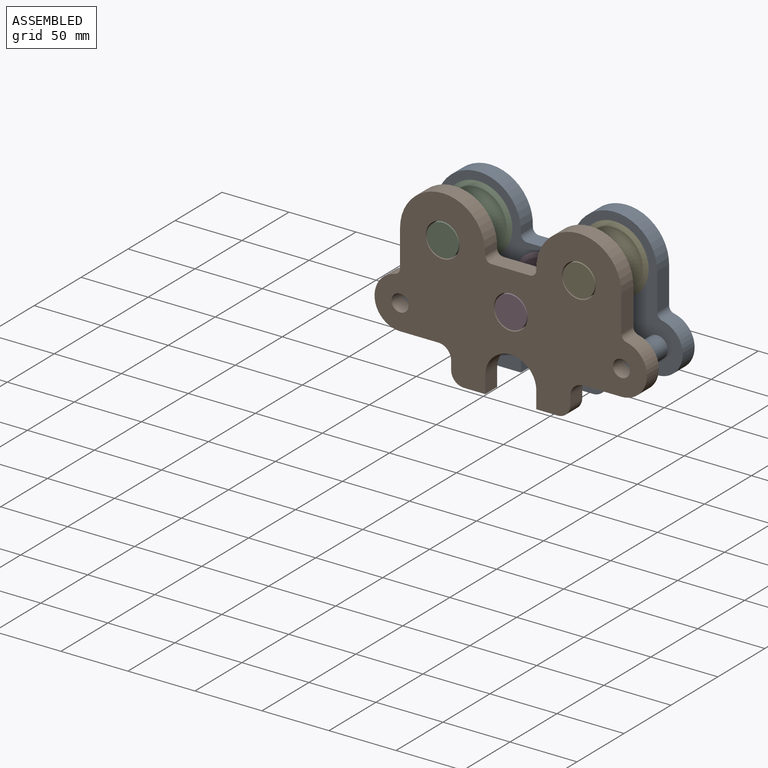
[diagram: assembled view]
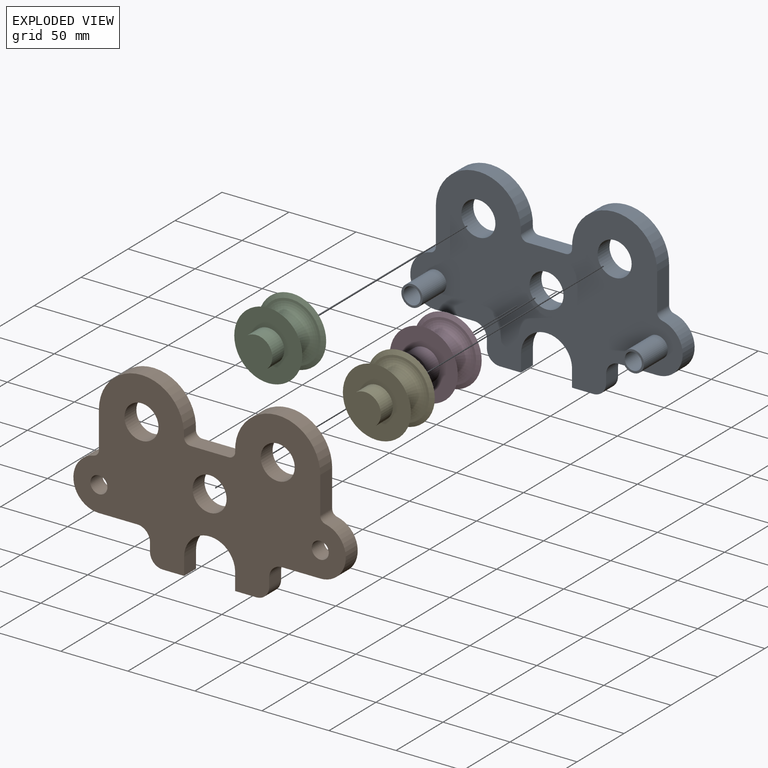
[diagram: exploded view]
GUIDED TOUR — MATED ASSEMBLY (Onshape document 58e2335e9acc530f8528affa, AutoMate assembly 58e2335e9acc530f8528affa_f4cbd53a4c2bf7e4a0e398c7_690183ee270c6294457ae0ae_default)

This assembly has 5 components, labeled P0..P4 below (a component is one placed occurrence of a part; the same part can appear more than once), held together by 4 mates. A mate is a constraint between two components; its type names the relative motion it leaves free:
  FASTENED — locks the two components together rigidly (no relative motion).
Axis/direction vectors are unit vectors and 'through' points are millimeter coordinates, both in the assembly's world frame.

MATES
  1. FASTENED "Fastened 2": P3 <-> P0, direction (0.000, 1.000, 0.000) through (-27.27, 97.55, 142.96) mm
  2. FASTENED "Fastened 1": P4 <-> P0, direction (0.000, 1.000, 0.000) through (23.53, 97.55, 177.89) mm
  3. FASTENED "Fastened 3": P2 <-> P0, direction (0.000, 1.000, 0.000) through (-78.07, 97.55, 177.89) mm
  4. FASTENED "Fastened 4": P1 <-> P4, direction (0.000, -1.000, 0.000) through (23.53, 46.75, 177.89) mm

ASSEMBLY ORDER
  1. P0 — the base component [order heuristic]
  2. P2 [order heuristic]
  3. P3 [order heuristic]
  4. P4 [order heuristic]
  5. P1 [order heuristic]
Order-tag legend:
  [order heuristic] — this assembly is geometrically interlocked (no collision-free removal order exists), so components are listed in mate-graph order; insertion feasibility is not verified.

Of the 5 components, 3 carry the full construction recipe — the FeatureScript program that regenerates the part's solid from scratch; the rest are supplied as boundary geometry only.
Each toured component is shown spotlighted twice — in the assembled view, then in the exploded view, where a leader line traces a displaced component back to its assembled socket (saturated green if recipe-attached, orange if geometry-only; every other component desaturated gray) — followed by its recipe or geometry summary and the mates that hold it.
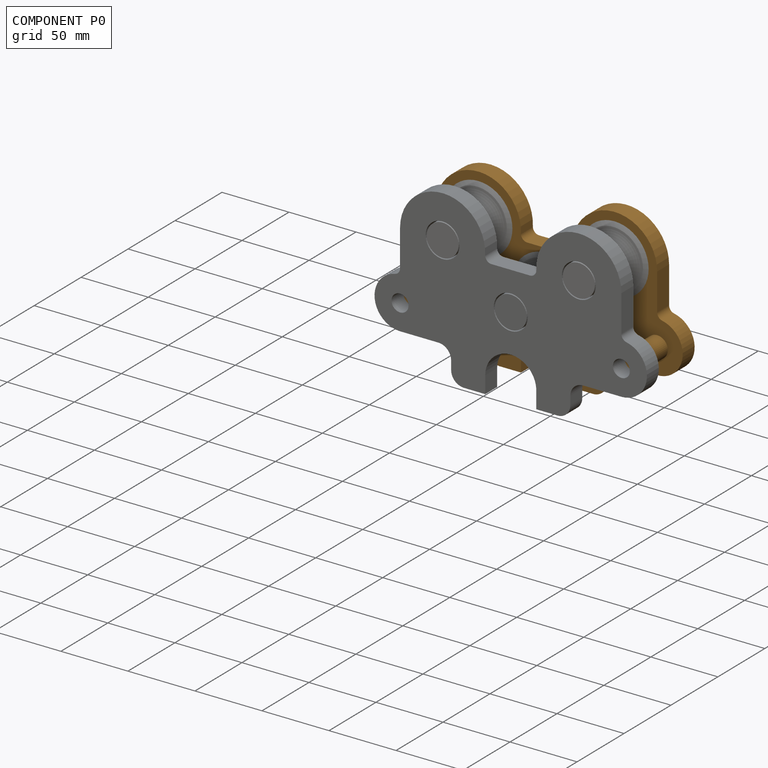
[diagram: component P0 — assembled]
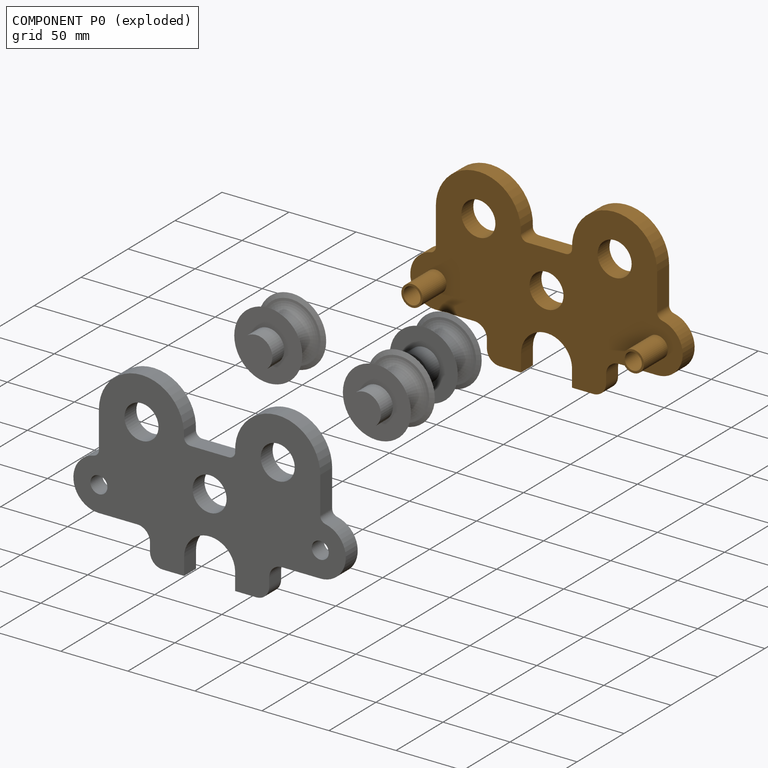
[diagram: component P0 — exploded]
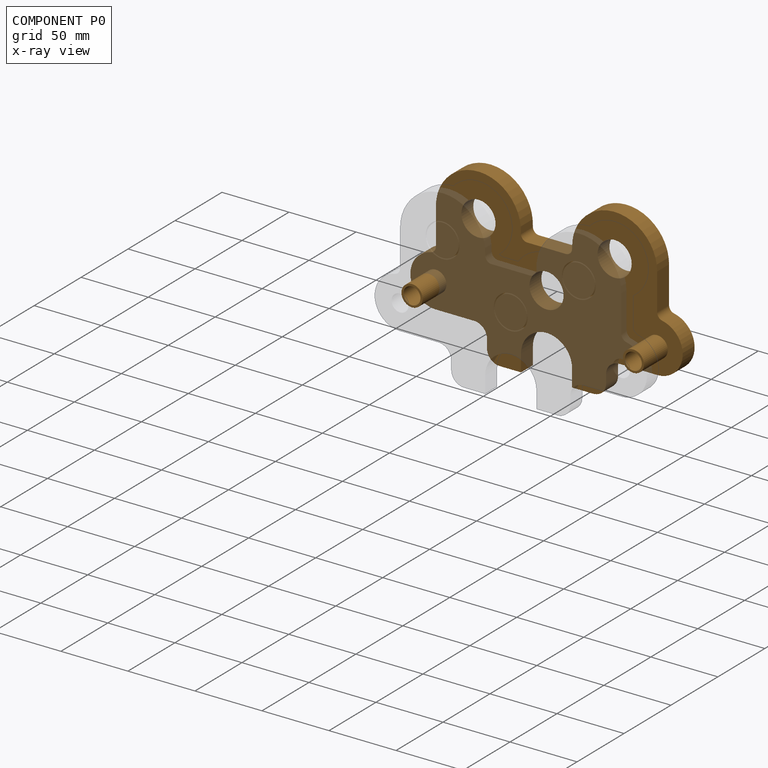
[diagram: component P0 — x-ray view]
COMPONENT P0 — geometry summary (no construction recipe available for this part):
  bounding box: 203.2 x 127.0 x 38.1 mm
  B-rep topology: 1 solid, 35 faces, 190 edges
  volume: 194689 mm^3 (20% of its bounding box)
  symmetry: mirror-symmetric across its x mid-plane
Held by: FASTENED mate "Fastened 2" to P3; FASTENED mate "Fastened 1" to P4; FASTENED mate "Fastened 3" to P2.
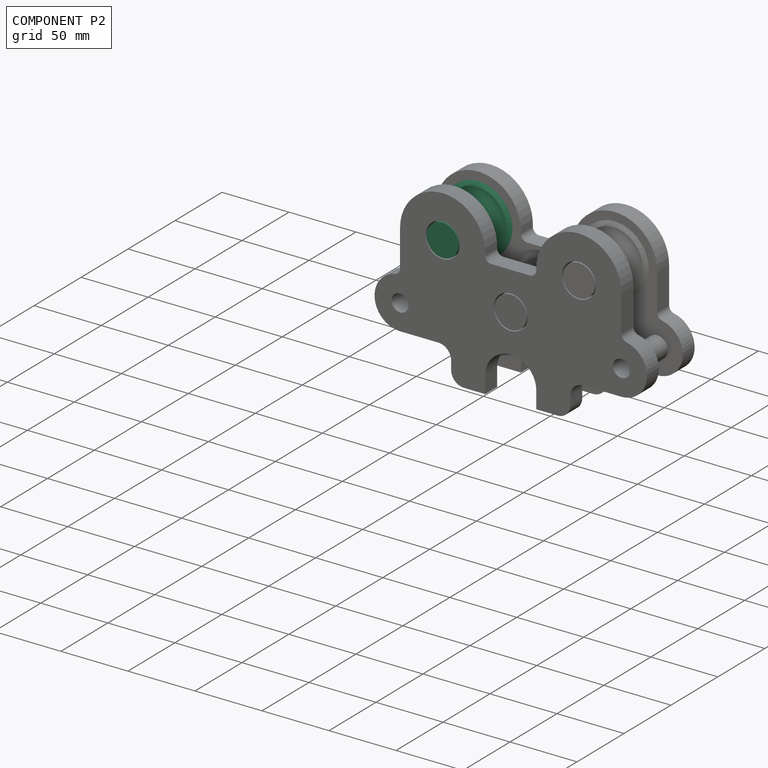
[diagram: component P2 — assembled]
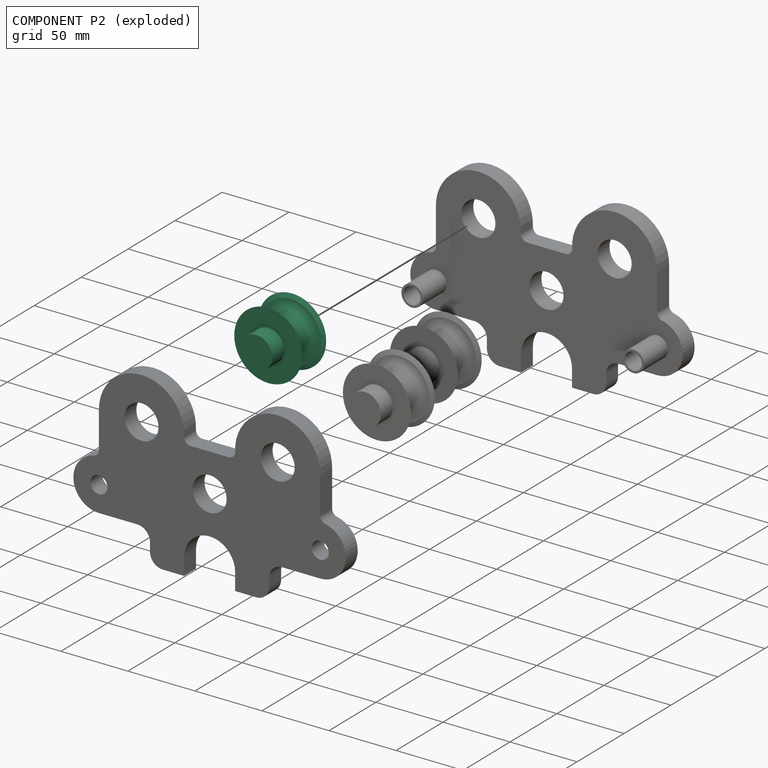
[diagram: component P2 — exploded]
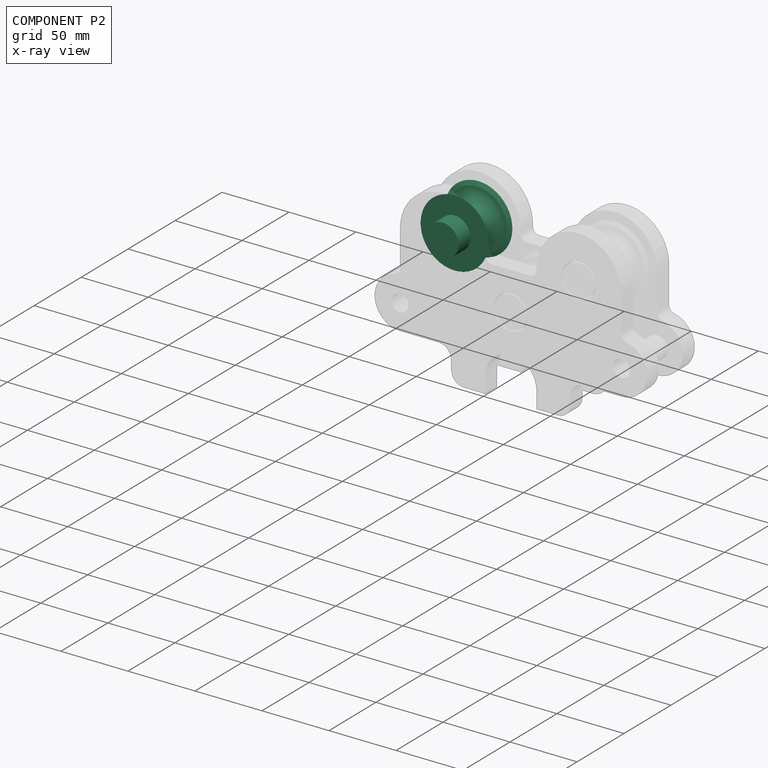
[diagram: component P2 — x-ray view]
COMPONENT P2 — recipe-attached (CADFS 00674757, mesh-verified: the recipe's output STEP matches this component's geometry to below the mesh-comparison resolution (tessellation chordal tolerance ~0.132 mm)).
Held by: FASTENED mate "Fastened 3" to P0.
Construction recipe (FeatureScript — the CAD program that rebuilds this solid; sketch coordinates are in the units given by the * unit suffixes, e.g. mm):

FeatureScript 1511;
import(path : "onshape/std/geometry.fs", version : "1511.0");
import(path : "onshape/std/common.fs", version : "1511.0");
const mm = millimeter;
const VERTEX = EntityType.VERTEX;
const EDGE = EntityType.EDGE;
const FACE = EntityType.FACE;
const BODY = EntityType.BODY;
function v(x, y){return vector(x, y);}
function OD(order){return orderDisambiguation(order);}
function OSD(set){return originalSetDisambiguation(set);}
function TD(topology){return topologyDisambiguation(topology);}
function TDD(query){return trueDependencyDisambiguation(query);}
function sQuery(a, b, c) {return sketchEntityQuery(a, b, c);}

annotation { "Feature Type Name" : "Feature", "Feature Type Description" : "" }
export const myFeature = defineFeature(function(context is Context, id is Id, definition is map)
    precondition{}
    {
        {
            var Q0;
            Q0=qCreatedBy(makeId("Front.planeOp"),FACE);
            var sketch = newSketch(context, id + "F0", { "sketchPlane" : qUnion([Q0])});
            skLineSegment(sketch, "E0", {"start": v(-25.4, 0) * mm, "end": v(-25.4, 25.4) * mm});
            skLineSegment(sketch, "E1", {"start": v(0, 0) * mm, "end": v(0, 25.4) * mm});
            skLineSegment(sketch, "E2", {"start": v(0, 25.4) * mm, "end": v(-1.48, 22.23) * mm});
            skLineSegment(sketch, "E3", {"start": v(-25.4, 25.4) * mm, "end": v(-23.92, 22.23) * mm});
            skArc(sketch, "E4", {"start": v(-23.92, 22.23) * mm, "mid": v(-12.7, 11) * mm, "end": v(-1.48, 22.23) * mm});
            skLineSegment(sketch, "E5", {"start": v(-1.48, 22.23) * mm, "end": v(-1.48, 33.76) * mm, "construction": true});
            skLineSegment(sketch, "E6", {"start": v(-23.92, 22.23) * mm, "end": v(-23.92, 33.33) * mm, "construction": true});
            skLineSegment(sketch, "E7", {"start": v(-25.4, 11.9) * mm, "end": v(-38.1, 11.9) * mm});
            skLineSegment(sketch, "E8", {"start": v(-38.1, 11.9) * mm, "end": v(-38.1, 0) * mm});
            skLineSegment(sketch, "E9", {"start": v(0, 11.9) * mm, "end": v(12.7, 11.9) * mm});
            skLineSegment(sketch, "E10", {"start": v(12.7, 11.9) * mm, "end": v(12.7, 0) * mm});
            skLineSegment(sketch, "E11", {"start": v(-44.29, 0) * mm, "end": v(20.59, 0) * mm});
            skSolve(sketch);
        }
        {
            var Q0;
            {var subQ3=sQuery(id+"F0.wireOp",EDGE,"E7");Q0=makeQuery(id+"F0.imprint","IMPRINT",FACE,{"disambiguationData":[TD([[makeQuery(id+"F0.imprint","IMPRINT",EDGE,{"derivedFrom":subQ3}),1.0]])]});}
            var Q1;
            {var subQ0=sQuery(id+"F0.wireOp",EDGE,"E2");Q1=makeQuery(id+"F0.imprint","IMPRINT",FACE,{"disambiguationData":[TD([[makeQuery(id+"F0.imprint","IMPRINT",EDGE,{"derivedFrom":subQ0}),1.0]])]});}
            var Q2;
            {var subQ3=sQuery(id+"F0.wireOp",EDGE,"E9");Q2=makeQuery(id+"F0.imprint","IMPRINT",FACE,{"disambiguationData":[TD([[makeQuery(id+"F0.imprint","IMPRINT",EDGE,{"derivedFrom":subQ3}),-1.0]])]});}
            var Q3;
            Q3=sQuery(id+"F0.wireOp",EDGE,"E11");
            revolve(context, id + "F1", {"entities" : qUnion([Q0, Q1, Q2]), "axis" : qUnion([Q3]), "revolveType" : RevolveType.FULL});
        }
    });
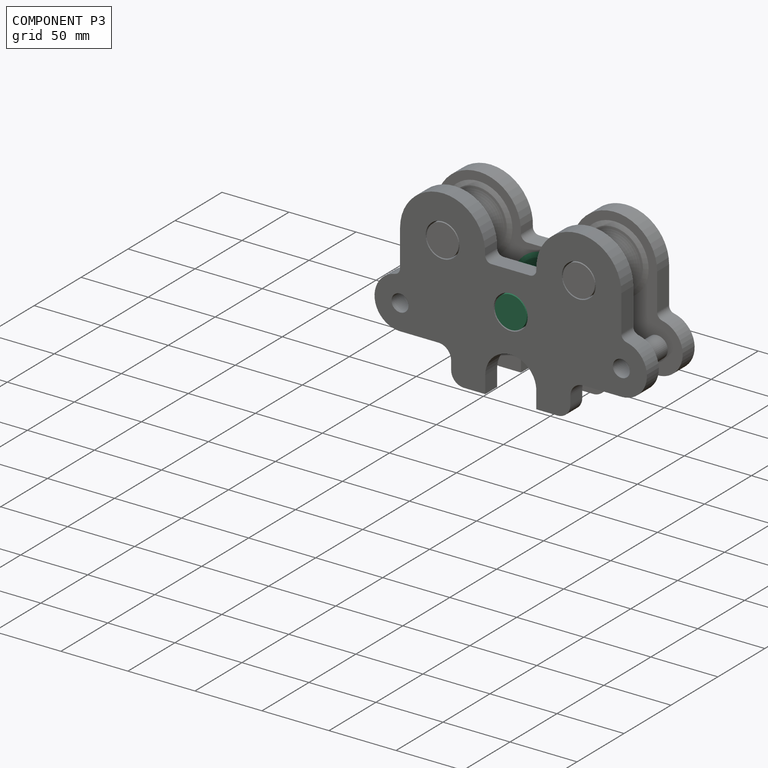
[diagram: component P3 — assembled]
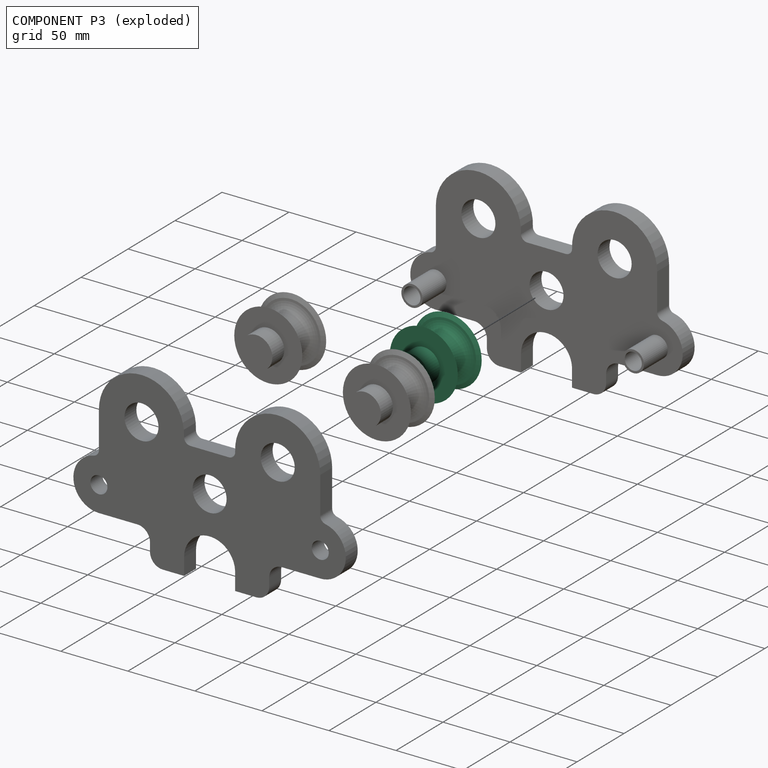
[diagram: component P3 — exploded]
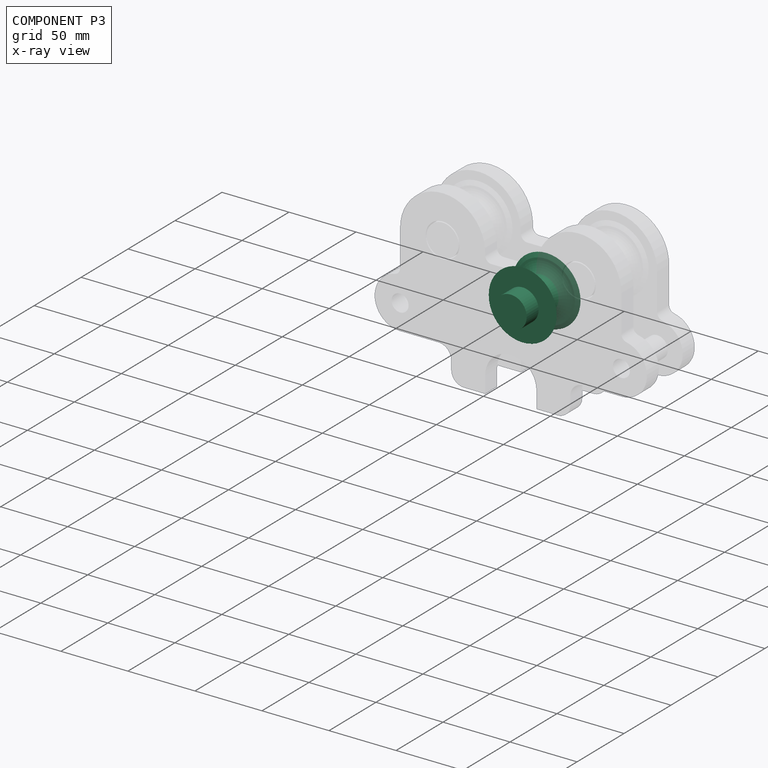
[diagram: component P3 — x-ray view]
COMPONENT P3 — same part as P2 (CADFS 00674757); its construction recipe is shown at P2.
Held by: FASTENED mate "Fastened 2" to P0.
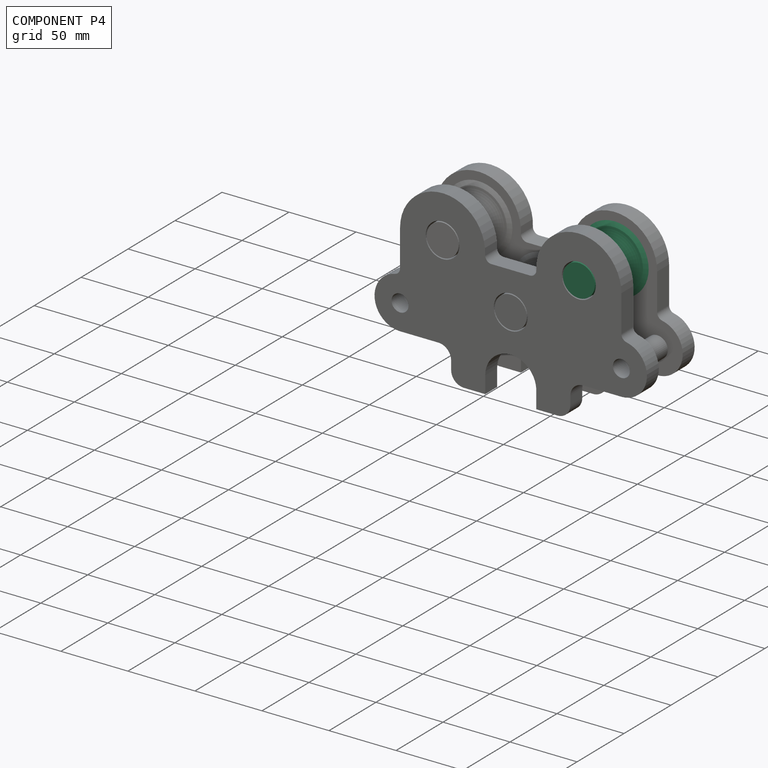
[diagram: component P4 — assembled]
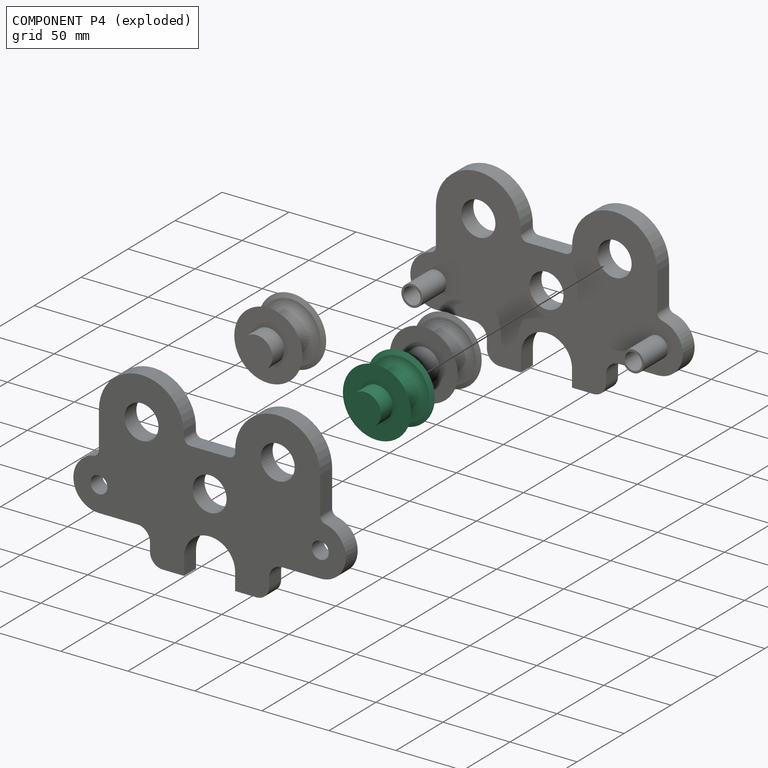
[diagram: component P4 — exploded]
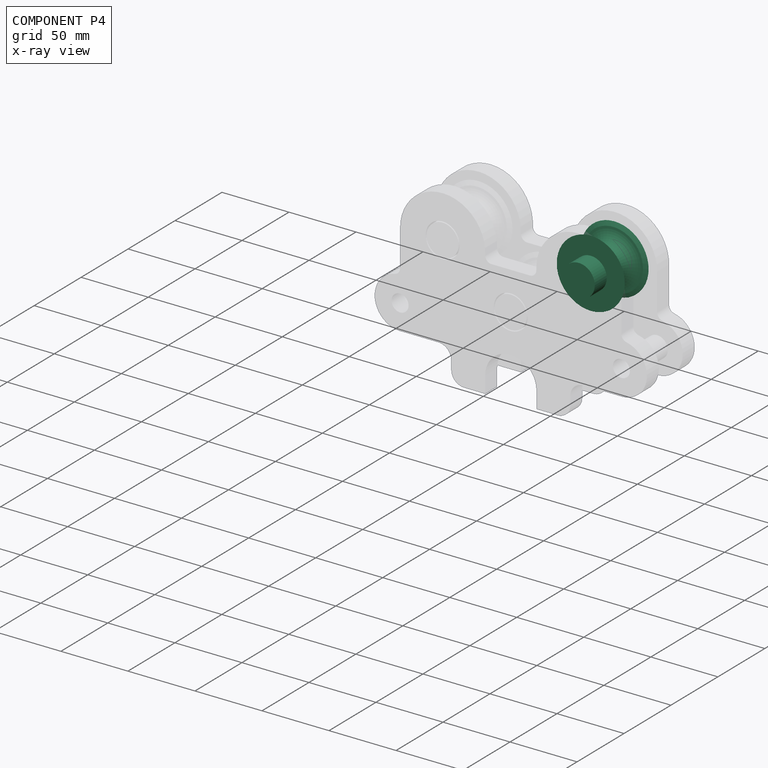
[diagram: component P4 — x-ray view]
COMPONENT P4 — same part as P2 (CADFS 00674757); its construction recipe is shown at P2.
Held by: FASTENED mate "Fastened 1" to P0; FASTENED mate "Fastened 4" to P1.
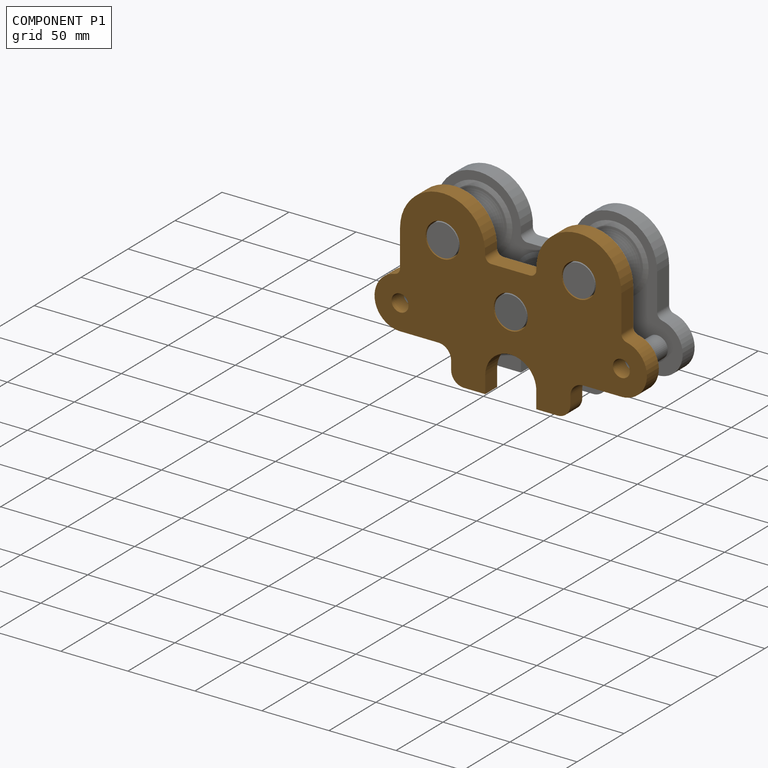
[diagram: component P1 — assembled]
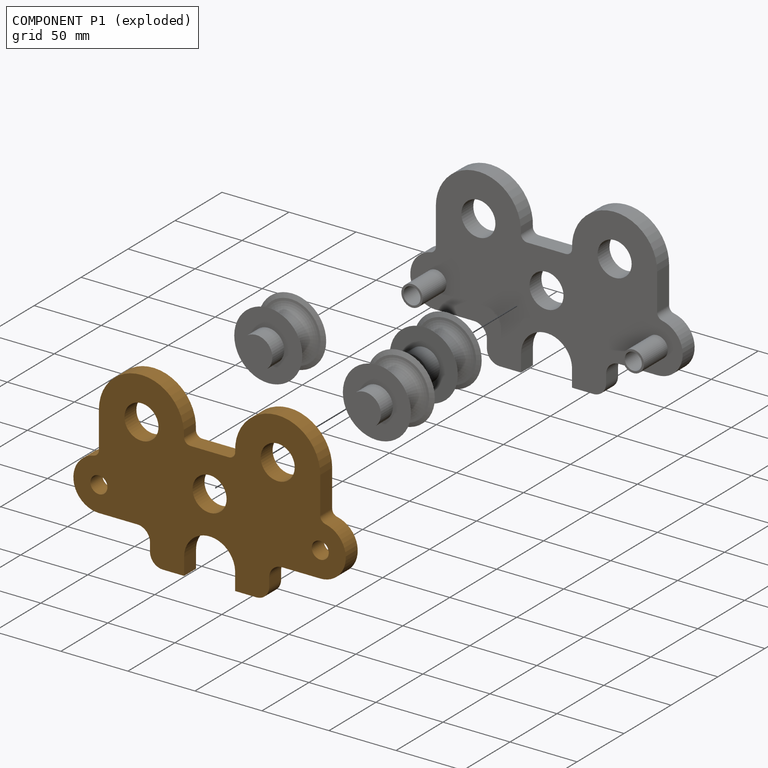
[diagram: component P1 — exploded]
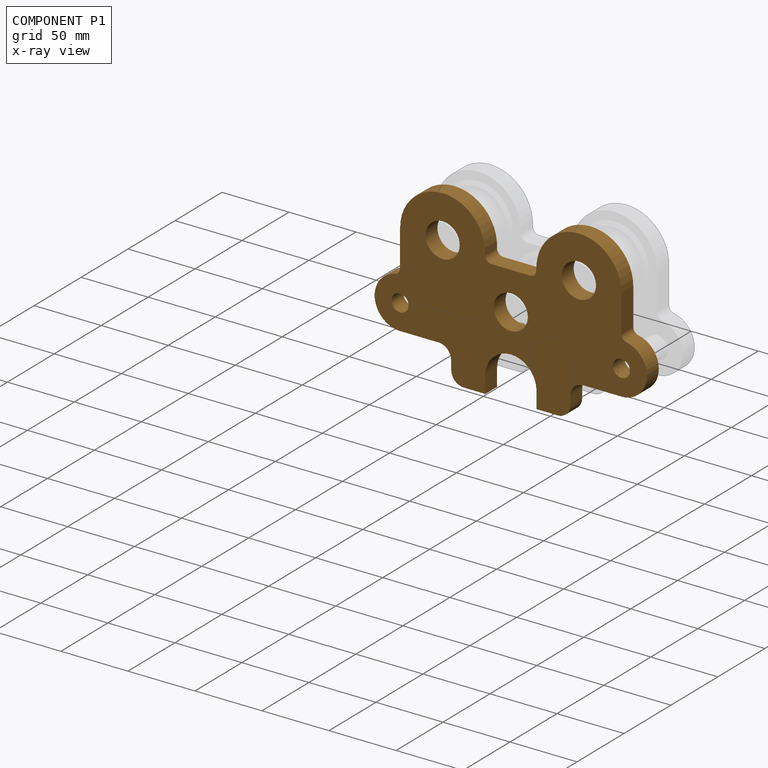
[diagram: component P1 — x-ray view]
COMPONENT P1 — geometry summary (no construction recipe available for this part):
  bounding box: 203.2 x 127.0 x 12.7 mm
  B-rep topology: 1 solid, 31 faces, 174 edges
  volume: 191069 mm^3 (58% of its bounding box)
  symmetry: 2-fold rotationally symmetric about the z axis; mirror-symmetric across its x mid-plane, y mid-plane
Held by: FASTENED mate "Fastened 4" to P4.
PROVENANCE & LICENSES
Assembly (occurrences, transforms, mates, per-part STEP geometry): AutoMate dataset, Zenodo record 7776208, CC0.
Construction recipes: CADFS (HuggingFace VladPyatov/CADFS, CC-BY-4.0, layered over the ABC dataset), FeatureScript reconstruction programs keyed by ABC model id.
Join: ABC meta listings map ABC model id -> Onshape documentId; within a shared document, parts are matched by geometric signature (bounding-box dims + volume at 0.1% relative tolerance, exact B-rep face/solid counts).
Verification: 3 of this assembly's 5 components carry a recipe attachment, and every attachment is mesh-verified: the CADFS STEP and the AutoMate member STEP were compared as meshes in their shared local frame (symmetric sampled-point-to-mesh distance); worst across the 3 attachments: below the mesh-comparison resolution (tessellation chordal tolerance ~0.132 mm) on a 88 mm part.
Renders: orthographic iso camera (az 35 / el 25); the floor grid conveys scale (grid pitch printed in each image; no ruler). In the exploded view each component is displaced by its stored offset vector: the offsets alone carry the explosion direction (mate normal/axis signs are not orientation cues and do not encode it), and separation distances are assigned per mate-chain, not proportionally to assembly-order depth.
